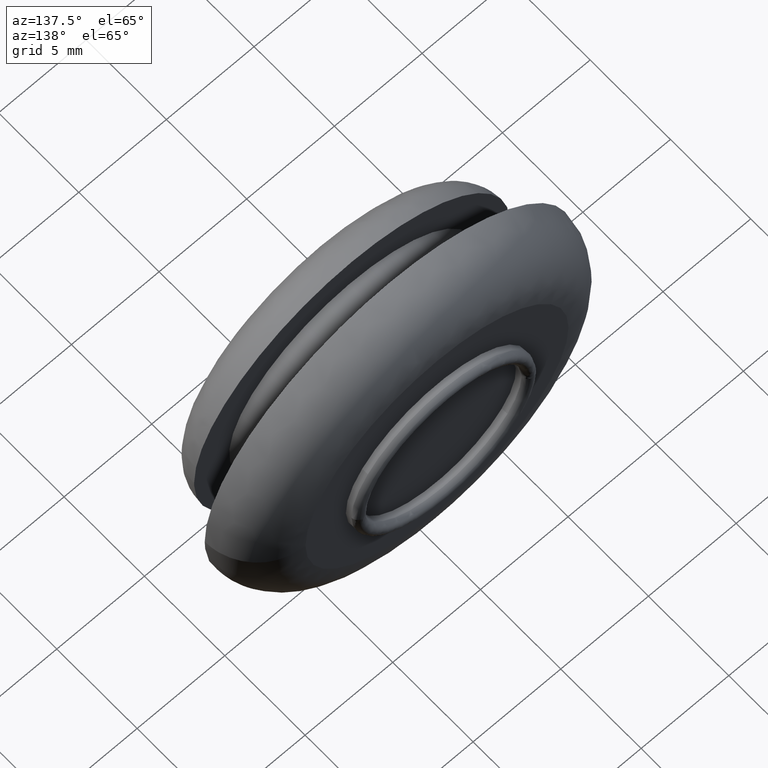
[diagram: clean part render]
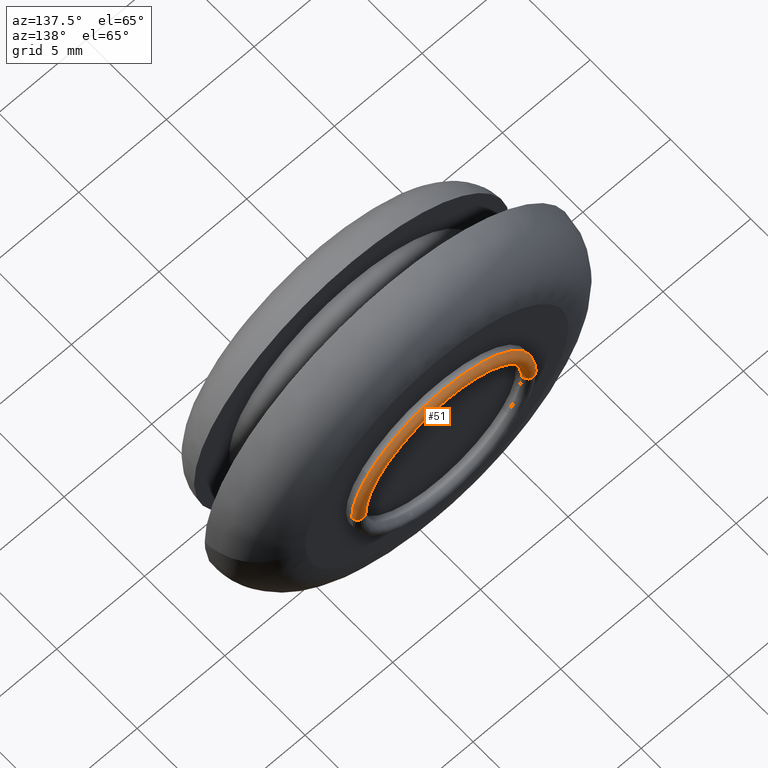
[diagram: same view with one face highlighted and labeled with its STEP entity id]
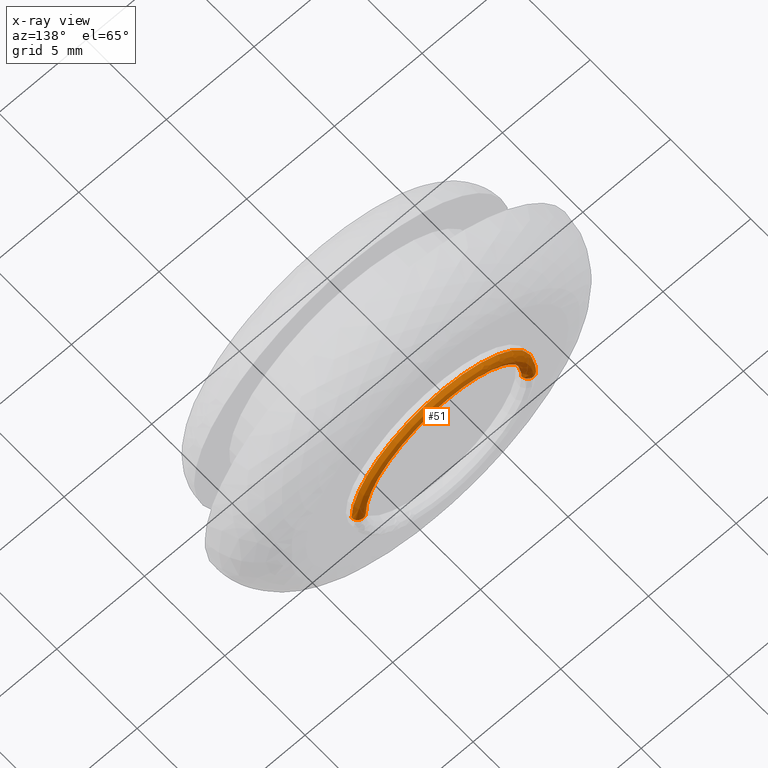
[diagram: x-ray of the same camera — body ghosted, the highlighted face saturated]
A machine part, auxiliary view. The second image highlights one B-rep face of the part: STEP entity #51.
The next image is the same camera in x-ray: the body ghosted, the highlighted face saturated — about 0% of this face is hidden behind the body in this view.
In plain terms, the highlighted face is a freeform B-spline surface patch.
Its self-contained STEP definition (entity closure, byte-faithful):
#51=ADVANCED_FACE('',(#175),#174,.T.);
#174=( BOUNDED_SURFACE() B_SPLINE_SURFACE( 2,2,((#428,#429,#430,#431,#432),(#433,#434,#435,#436,#437),(#438,#439,#440,#441,#442),(#443,#444,#445,#446,#447),(#448,#449,#450,#451,#452)), .UNSPECIFIED.,.F.,.F.,.F.) B_SPLINE_SURFACE_WITH_KNOTS((3,2,3),(3,2,3),(0.00000000000E+000,5.00000000000E-001,1.00000000000E+000),(0.00000000000E+000,5.00000000000E-001,1.00000000000E+000), .UNSPECIFIED. ) GEOMETRIC_REPRESENTATION_ITEM() RATIONAL_B_SPLINE_SURFACE(((1.00000000000E+000,7.07106778288E-001,1.00000000000E+000,7.07106778288E-001,1.00000000000E+000),(7.07106781187E-001,4.99999997950E-001,7.07106781187E-001,4.99999997950E-001,7.07106781187E-001),(1.00000000000E+000,7.07106778288E-001,1.00000000000E+000,7.07106778288E-001,1.00000000000E+000),(7.07106781187E-001,4.99999997950E-001,7.07106781187E-001,4.99999997950E-001,7.07106781187E-001),(1.00000000000E+000,7.07106778288E-001,1.00000000000E+000,7.07106778288E-001,1.00000000000E+000))) REPRESENTATION_ITEM('') SURFACE() );
#175=FACE_OUTER_BOUND('',#453,.T.);
#428=CARTESIAN_POINT('',(4.50000000001E+000,7.64999999427E+000,-1.49565708006E-013));
#429=CARTESIAN_POINT('',(4.49999999427E+000,7.99999999713E+000,-1.42787109394E-013));
#430=CARTESIAN_POINT('',(4.84999999714E+000,8.00000000000E+000,-1.42787110754E-013));
#431=CARTESIAN_POINT('',(5.20000000001E+000,8.00000000287E+000,-1.42787112114E-013));
#432=CARTESIAN_POINT('',(5.20000000001E+000,7.65000000000E+000,-1.49565710726E-013));
#433=CARTESIAN_POINT('',(4.50000000001E+000,7.64999999427E+000,4.50000000000E+000));
#434=CARTESIAN_POINT('',(4.49999999427E+000,7.99999999713E+000,4.49999999426E+000));
#435=CARTESIAN_POINT('',(4.84999999714E+000,8.00000000000E+000,4.84999999713E+000));
#436=CARTESIAN_POINT('',(5.20000000001E+000,8.00000000287E+000,5.20000000000E+000));
#437=CARTESIAN_POINT('',(5.20000000001E+000,7.65000000000E+000,5.20000000000E+000));
#438=CARTESIAN_POINT('',(2.92675407040E-012,7.64999999426E+000,4.50000000000E+000));
#439=CARTESIAN_POINT('',(2.76223054246E-012,7.99999999713E+000,4.49999999426E+000));
#440=CARTESIAN_POINT('',(2.76225197384E-012,8.00000000000E+000,4.84999999713E+000));
#441=CARTESIAN_POINT('',(2.76227340523E-012,8.00000000287E+000,5.20000000000E+000));
#442=CARTESIAN_POINT('',(2.92679693317E-012,7.65000000000E+000,5.20000000000E+000));
#443=CARTESIAN_POINT('',(-4.50000000000E+000,7.64999999426E+000,4.50000000000E+000));
#444=CARTESIAN_POINT('',(-4.49999999426E+000,7.99999999713E+000,4.49999999426E+000));
#445=CARTESIAN_POINT('',(-4.84999999713E+000,8.00000000000E+000,4.84999999713E+000));
#446=CARTESIAN_POINT('',(-5.20000000000E+000,8.00000000287E+000,5.20000000000E+000));
#447=CARTESIAN_POINT('',(-5.20000000000E+000,7.65000000000E+000,5.20000000000E+000));
#448=CARTESIAN_POINT('',(-4.50000000000E+000,7.64999999426E+000,-1.49014580546E-013));
#449=CARTESIAN_POINT('',(-4.49999999426E+000,7.99999999713E+000,-1.42235981934E-013));
#450=CARTESIAN_POINT('',(-4.84999999713E+000,8.00000000000E+000,-1.42193117825E-013));
#451=CARTESIAN_POINT('',(-5.20000000000E+000,8.00000000287E+000,-1.42150253715E-013));
#452=CARTESIAN_POINT('',(-5.20000000000E+000,7.65000000000E+000,-1.48928852327E-013));
#453=EDGE_LOOP('',(#564,#565,#566,#567,#568,#569,#570,#571,#572,#573,#574,#575));
#564=ORIENTED_EDGE('',*,*,#674,.T.);
#565=ORIENTED_EDGE('',*,*,#675,.T.);
#566=ORIENTED_EDGE('',*,*,#676,.T.);
#567=ORIENTED_EDGE('',*,*,#677,.T.);
#568=ORIENTED_EDGE('',*,*,#678,.T.);
#569=ORIENTED_EDGE('',*,*,#668,.T.);
#570=ORIENTED_EDGE('',*,*,#679,.F.);
#571=ORIENTED_EDGE('',*,*,#680,.F.);
#572=ORIENTED_EDGE('',*,*,#681,.F.);
#573=ORIENTED_EDGE('',*,*,#682,.F.);
#574=ORIENTED_EDGE('',*,*,#683,.F.);
#575=ORIENTED_EDGE('',*,*,#673,.F.);
#668=EDGE_CURVE('',#983,#976,#984,.T.);
#673=EDGE_CURVE('',#1011,#962,#1018,.T.);
#674=EDGE_CURVE('',#1011,#1024,#1025,.T.);
#675=EDGE_CURVE('',#1024,#1031,#1032,.T.);
#676=EDGE_CURVE('',#1031,#1038,#1039,.T.);
#677=EDGE_CURVE('',#1038,#1045,#1046,.T.);
#678=EDGE_CURVE('',#1045,#983,#1052,.T.);
#679=EDGE_CURVE('',#1058,#976,#1059,.T.);
#680=EDGE_CURVE('',#1065,#1058,#1066,.T.);
#681=EDGE_CURVE('',#1072,#1065,#1073,.T.);
#682=EDGE_CURVE('',#1079,#1072,#1080,.T.);
#683=EDGE_CURVE('',#962,#1079,#1086,.T.);
#962=VERTEX_POINT('',#1334);
#976=VERTEX_POINT('',#1344);
#983=VERTEX_POINT('',#1349);
#984=(BOUNDED_CURVE() B_SPLINE_CURVE(2,(#1350,#1351,#1352,#1353,#1354),.UNSPECIFIED.,.F.,.F.) B_SPLINE_CURVE_WITH_KNOTS((3,2,3),(0.00000000000E+000,5.00000000000E-001,1.00000000000E+000),.UNSPECIFIED.) CURVE() GEOMETRIC_REPRESENTATION_ITEM() RATIONAL_B_SPLINE_CURVE((1.00000000000E+000,7.07106778288E-001,1.00000000000E+000,7.07106778288E-001,1.00000000000E+000)) REPRESENTATION_ITEM('') );
#1011=VERTEX_POINT('',#1370);
#1018=(BOUNDED_CURVE() B_SPLINE_CURVE(2,(#1375,#1376,#1377,#1378,#1379),.UNSPECIFIED.,.F.,.F.) B_SPLINE_CURVE_WITH_KNOTS((3,2,3),(0.00000000000E+000,5.00000000000E-001,1.00000000000E+000),.UNSPECIFIED.) CURVE() GEOMETRIC_REPRESENTATION_ITEM() RATIONAL_B_SPLINE_CURVE((7.50000000000E-001,5.30330083716E-001,7.50000000000E-001,5.30330083716E-001,7.50000000000E-001)) REPRESENTATION_ITEM('') );
#1024=VERTEX_POINT('',#1380);
#1025=CIRCLE('',#1384,4.50000000002E+000);
#1031=VERTEX_POINT('',#1385);
#1032=CIRCLE('',#1389,4.50000000002E+000);
#1038=VERTEX_POINT('',#1390);
#1039=CIRCLE('',#1394,4.49999999890E+000);
#1045=VERTEX_POINT('',#1395);
#1046=CIRCLE('',#1399,4.50000000001E+000);
#1052=CIRCLE('',#1403,4.50000000000E+000);
#1058=VERTEX_POINT('',#1404);
#1059=CIRCLE('',#1408,5.20000000000E+000);
#1065=VERTEX_POINT('',#1409);
#1066=CIRCLE('',#1413,5.20000000000E+000);
#1072=VERTEX_POINT('',#1414);
#1073=CIRCLE('',#1418,5.19999999926E+000);
#1079=VERTEX_POINT('',#1419);
#1080=CIRCLE('',#1423,5.20000000001E+000);
#1086=CIRCLE('',#1427,5.20000000001E+000);
#1334=CARTESIAN_POINT('',(5.19999791885E+000,7.65000000000E+000,-4.65231016337E-003));
#1344=CARTESIAN_POINT('',(-5.20000000000E+000,7.64999999995E+000,1.24635031632E-010));
#1349=CARTESIAN_POINT('',(-4.50000000000E+000,7.64999999979E+000,-1.50141123725E-013));
#1350=CARTESIAN_POINT('',(-4.50000000000E+000,7.64999999426E+000,-1.50116762665E-013));
#1351=CARTESIAN_POINT('',(-4.49999999426E+000,7.99999999713E+000,-1.43338164052E-013));
#1352=CARTESIAN_POINT('',(-4.84999999713E+000,8.00000000000E+000,-1.43381025219E-013));
#1353=CARTESIAN_POINT('',(-5.20000000000E+000,8.00000000287E+000,-1.43423886387E-013));
#1354=CARTESIAN_POINT('',(-5.20000000000E+000,7.65000000000E+000,-1.50202484998E-013));
#1370=CARTESIAN_POINT('',(4.49999999532E+000,7.65000000000E+000,2.05495713352E-004));
#1375=CARTESIAN_POINT('',(4.50000000001E+000,7.64999999427E+000,-1.48917915036E-013));
#1376=CARTESIAN_POINT('',(4.49999999427E+000,7.99999999713E+000,-1.41936358847E-013));
#1377=CARTESIAN_POINT('',(4.84999999714E+000,8.00000000000E+000,-1.41220368732E-013));
#1378=CARTESIAN_POINT('',(5.20000000001E+000,8.00000000287E+000,-1.42145704509E-013));
#1379=CARTESIAN_POINT('',(5.20000000001E+000,7.65000000000E+000,-1.48621855563E-013));
#1380=CARTESIAN_POINT('',(3.69469279361E+000,7.65000000004E+000,2.56889960116E+000));
#1381=CARTESIAN_POINT('',(-1.25359722603E-011,7.65000000022E+000,-2.07940331620E-011));
#1382=DIRECTION('',(-4.77005420370E-011,-1.00000000000E+000,-8.75570831421E-014));
#1383=DIRECTION('',(-8.21061317145E-001,3.92150509594E-011,-5.70840006909E-001));
#1384=AXIS2_PLACEMENT_3D('',#1381,#1382,#1383);
#1385=CARTESIAN_POINT('',(5.65471794892E-002,7.65000000021E+000,4.49964469892E+000));
#1386=CARTESIAN_POINT('',(-1.25359722603E-011,7.65000000022E+000,-2.07940331620E-011));
#1387=DIRECTION('',(-4.77005420370E-011,-1.00000000000E+000,-8.75570831421E-014));
#1388=DIRECTION('',(-8.21061317145E-001,3.92150509594E-011,-5.70840006909E-001));
#1389=AXIS2_PLACEMENT_3D('',#1386,#1387,#1388);
#1390=CARTESIAN_POINT('',(0.00000000000E+000,7.65000000000E+000,4.50000000000E+000));
#1391=CARTESIAN_POINT('',(6.92039481276E-012,7.65000268438E+000,1.09935438530E-009));
#1392=DIRECTION('',(8.70936325635E-014,-1.00000000000E+000,-5.96528085096E-007));
#1393=DIRECTION('',(-1.25660398880E-002,5.96480984652E-007,-9.99921044204E-001));
#1394=AXIS2_PLACEMENT_3D('',#1391,#1392,#1393);
#1395=CARTESIAN_POINT('',(-4.48904553228E+000,7.65000000021E+000,3.13799632100E-001));
#1396=CARTESIAN_POINT('',(5.13544762271E-012,7.65000000023E+000,-5.50404166688E-012));
#1397=DIRECTION('',(-2.79127548214E-016,-1.00000000000E+000,-5.06232093281E-011));
#1398=DIRECTION('',(1.14121058282E-012,5.06232093281E-011,-1.00000000000E+000));
#1399=AXIS2_PLACEMENT_3D('',#1396,#1397,#1398);
#1400=CARTESIAN_POINT('',(1.33226762955E-015,7.65000000033E+000,8.88178419700E-016));
#1401=DIRECTION('',(1.21338002035E-010,-1.00000000000E+000,1.34385250314E-009));
#1402=DIRECTION('',(9.97565673840E-001,2.73314210770E-011,-6.97332515777E-002));
#1403=AXIS2_PLACEMENT_3D('',#1400,#1401,#1402);
#1404=CARTESIAN_POINT('',(-5.18734150397E+000,7.65000000005E+000,3.62612908199E-001));
#1405=CARTESIAN_POINT('',(-1.77635683940E-015,7.65000000008E+000,-2.66453525910E-015));
#1406=DIRECTION('',(2.43794370255E-011,-1.00000000000E+000,2.70018500868E-010));
#1407=DIRECTION('',(9.97565673840E-001,5.49082147271E-012,-6.97332515768E-002));
#1408=AXIS2_PLACEMENT_3D('',#1405,#1406,#1407);
#1409=CARTESIAN_POINT('',(0.00000000000E+000,7.65000000000E+000,5.20000000000E+000));
#1410=CARTESIAN_POINT('',(3.56514817668E-012,7.65000000005E+000,-3.82405218602E-012));
#1411=DIRECTION('',(6.14291171968E-028,-1.00000000000E+000,-1.01723757622E-011));
#1412=DIRECTION('',(6.85605418591E-013,1.01723757622E-011,-1.00000000000E+000));
#1413=AXIS2_PLACEMENT_3D('',#1410,#1411,#1412);
#1414=CARTESIAN_POINT('',(6.53434074030E-002,7.65000000005E+000,5.19958942986E+000));
#1415=CARTESIAN_POINT('',(4.68022842703E-012,7.65000062277E+000,7.42122807651E-010));
#1416=DIRECTION('',(-1.24937282543E-013,-1.00000000000E+000,-1.19763207856E-007));
#1417=DIRECTION('',(-1.25660398861E-002,1.19753753426E-007,-9.99921044204E-001));
#1418=AXIS2_PLACEMENT_3D('',#1415,#1416,#1417);
#1419=CARTESIAN_POINT('',(4.26942324446E+000,7.65000000001E+000,2.96850554314E+000));
#1420=CARTESIAN_POINT('',(-8.48165981893E-012,7.65000000005E+000,-1.31779032131E-011));
#1421=DIRECTION('',(-9.57618728678E-012,-1.00000000000E+000,-7.05474047836E-014));
#1422=DIRECTION('',(-8.21061408799E-001,7.90290909635E-012,-5.70839875079E-001));
#1423=AXIS2_PLACEMENT_3D('',#1420,#1421,#1422);
#1424=CARTESIAN_POINT('',(-8.48165981893E-012,7.65000000005E+000,-1.31779032131E-011));
#1425=DIRECTION('',(-9.57618728678E-012,-1.00000000000E+000,-7.05474047836E-014));
#1426=DIRECTION('',(-8.21061408799E-001,7.90290909635E-012,-5.70839875079E-001));
#1427=AXIS2_PLACEMENT_3D('',#1424,#1425,#1426);